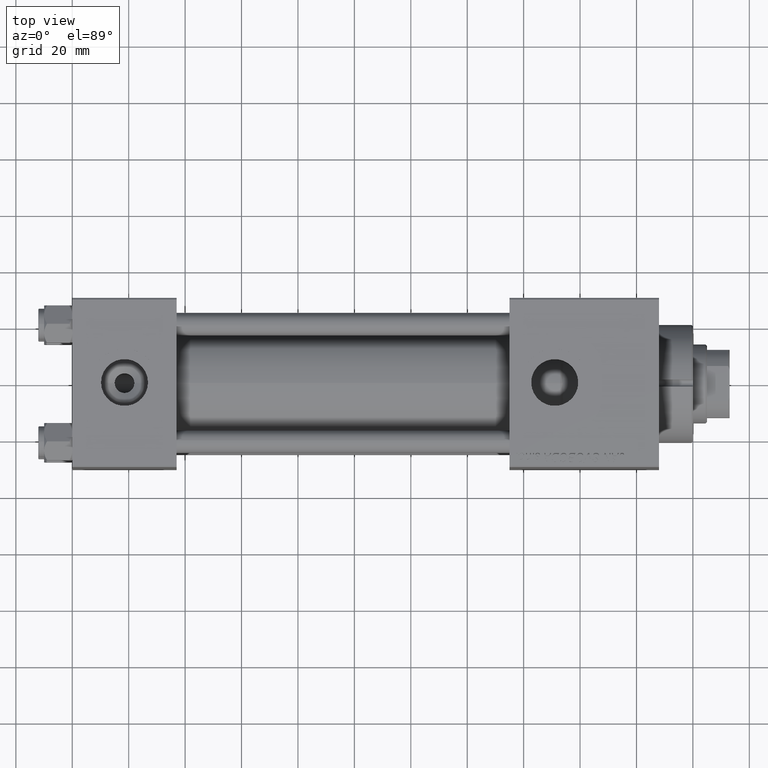
[diagram: clean part render]
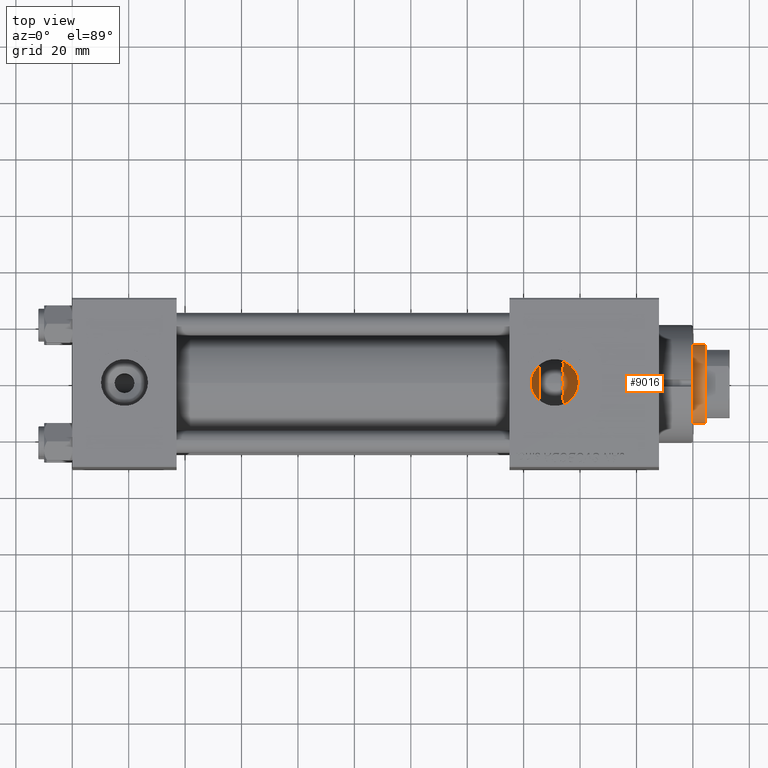
[diagram: same view with one face highlighted and labeled with its STEP entity id]
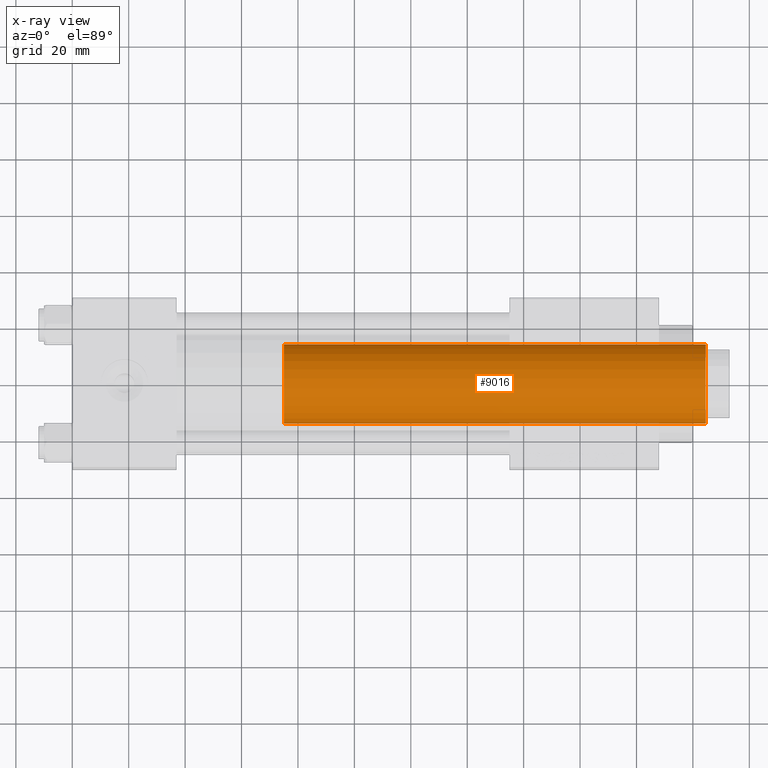
[diagram: x-ray of the same camera — body ghosted, the highlighted face saturated]
A machine part, top view. The second image highlights one B-rep face of the part: STEP entity #9016.
The next image is the same camera in x-ray: the body ghosted, the highlighted face saturated — about 1% of this face is hidden behind the body in this view.
In plain terms, the highlighted cylindrical surface (partial cylindrical patch) has radius 14 mm, axis along (-1, 0, 0).
Its self-contained STEP definition (entity closure, byte-faithful):
#333 = VERTEX_POINT ( 'NONE', #50366 ) ;
#3012 = DIRECTION ( 'NONE',  ( -0.000000000000000000, -0.000000000000000000, -1.000000000000000000 ) ) ;
#8710 = DIRECTION ( 'NONE',  ( 0.000000000000000000, 0.000000000000000000, -1.000000000000000000 ) ) ;
#9016 = ADVANCED_FACE ( 'NONE', ( #50953 ), #24028, .T. ) ;
#10104 = CIRCLE ( 'NONE', #23422, 14.00000000000000178 ) ;
#12246 = EDGE_CURVE ( 'NONE', #333, #17331, #27488, .T. ) ;
#16317 = ORIENTED_EDGE ( 'NONE', *, *, #37874, .T. ) ;
#17331 = VERTEX_POINT ( 'NONE', #39092 ) ;
#17339 = LINE ( 'NONE', #49167, #22785 ) ;
#20444 = DIRECTION ( 'NONE',  ( 1.000000000000000000, 0.000000000000000000, 0.000000000000000000 ) ) ;
#21496 = DIRECTION ( 'NONE',  ( -0.000000000000000000, -0.000000000000000000, -1.000000000000000000 ) ) ;
#21644 = DIRECTION ( 'NONE',  ( 0.000000000000000000, 0.000000000000000000, 1.000000000000000000 ) ) ;
#21694 = AXIS2_PLACEMENT_3D ( 'NONE', #47271, #43091, #39171 ) ;
#22388 = ORIENTED_EDGE ( 'NONE', *, *, #27082, .T. ) ;
#22785 = VECTOR ( 'NONE', #21496, 1000.000000000000000 ) ;
#23422 = AXIS2_PLACEMENT_3D ( 'NONE', #24081, #8710, #20444 ) ;
#24028 = CYLINDRICAL_SURFACE ( 'NONE', #21694, 14.00000000000000178 ) ;
#24081 = CARTESIAN_POINT ( 'NONE',  ( 0.000000000000000000, 0.000000000000000000, 187.5000000000000284 ) ) ;
#25554 = CARTESIAN_POINT ( 'NONE',  ( 0.000000000000000000, 0.000000000000000000, 38.00000000000000000 ) ) ;
#27082 = EDGE_CURVE ( 'NONE', #38680, #333, #34573, .T. ) ;
#27488 = CIRCLE ( 'NONE', #46694, 14.00000000000000178 ) ;
#30024 = ORIENTED_EDGE ( 'NONE', *, *, #46647, .F. ) ;
#30446 = EDGE_LOOP ( 'NONE', ( #30024, #16317, #22388, #46791 ) ) ;
#31105 = CARTESIAN_POINT ( 'NONE',  ( 14.00000000000000178, 1.714505518806294835E-15, 187.5000000000000284 ) ) ;
#31160 = CARTESIAN_POINT ( 'NONE',  ( -14.00000000000000178, 0.000000000000000000, 188.0000000000000000 ) ) ;
#34573 = LINE ( 'NONE', #31160, #34871 ) ;
#34871 = VECTOR ( 'NONE', #3012, 1000.000000000000000 ) ;
#37552 = DIRECTION ( 'NONE',  ( 1.000000000000000000, 0.000000000000000000, 0.000000000000000000 ) ) ;
#37874 = EDGE_CURVE ( 'NONE', #46067, #38680, #10104, .T. ) ;
#38680 = VERTEX_POINT ( 'NONE', #50818 ) ;
#39092 = CARTESIAN_POINT ( 'NONE',  ( 14.00000000000000178, 1.714505518806294835E-15, 38.00000000000000000 ) ) ;
#39171 = DIRECTION ( 'NONE',  ( -1.000000000000000000, 0.000000000000000000, 0.000000000000000000 ) ) ;
#43091 = DIRECTION ( 'NONE',  ( -0.000000000000000000, -0.000000000000000000, -1.000000000000000000 ) ) ;
#46067 = VERTEX_POINT ( 'NONE', #31105 ) ;
#46647 = EDGE_CURVE ( 'NONE', #46067, #17331, #17339, .T. ) ;
#46694 = AXIS2_PLACEMENT_3D ( 'NONE', #25554, #21644, #37552 ) ;
#46791 = ORIENTED_EDGE ( 'NONE', *, *, #12246, .T. ) ;
#47271 = CARTESIAN_POINT ( 'NONE',  ( 0.000000000000000000, 0.000000000000000000, 188.0000000000000000 ) ) ;
#49167 = CARTESIAN_POINT ( 'NONE',  ( 14.00000000000000178, 1.714505518806294835E-15, 188.0000000000000000 ) ) ;
#50366 = CARTESIAN_POINT ( 'NONE',  ( -14.00000000000000178, 0.000000000000000000, 38.00000000000000000 ) ) ;
#50818 = CARTESIAN_POINT ( 'NONE',  ( -14.00000000000000178, 0.000000000000000000, 187.5000000000000284 ) ) ;
#50953 = FACE_OUTER_BOUND ( 'NONE', #30446, .T. ) ;